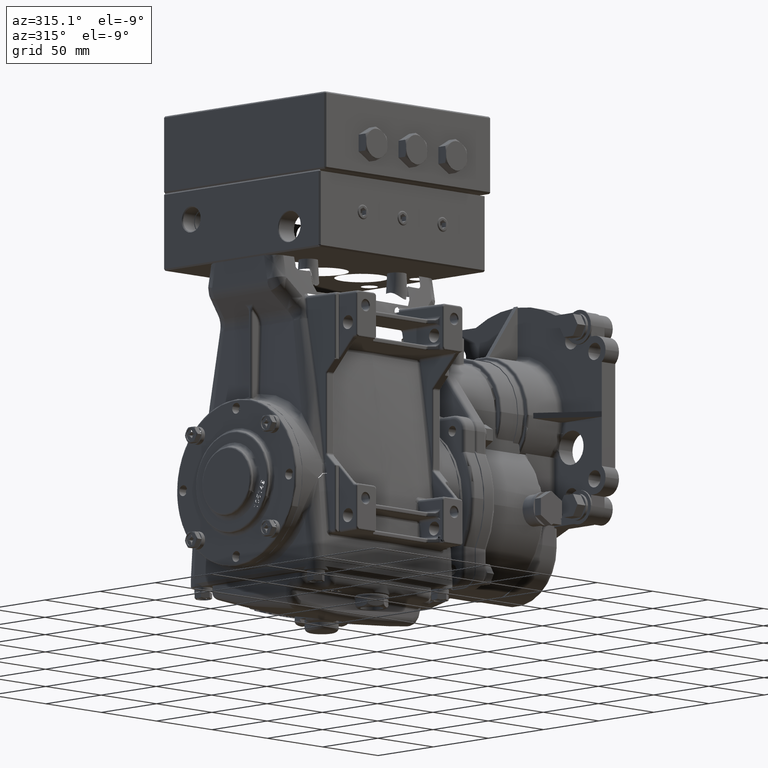
[diagram: clean part render]
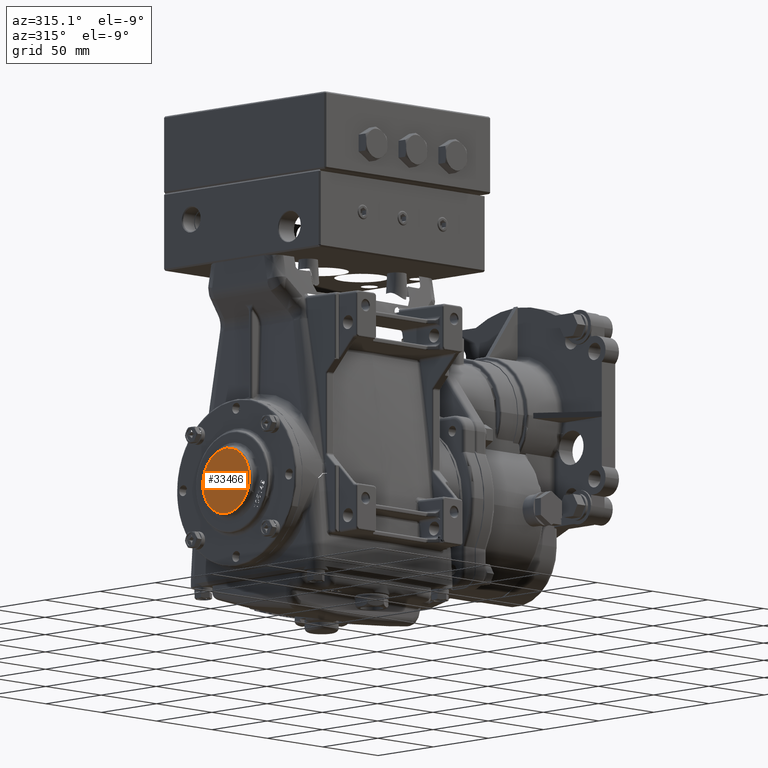
[diagram: same view with one face highlighted and labeled with its STEP entity id]
A machine part, auxiliary view. The second image highlights one B-rep face of the part: STEP entity #33466.
In plain terms, the highlighted planar face has unit normal (1, 0, -0).
Its self-contained STEP definition (entity closure, byte-faithful):
#1611 = DIRECTION ( 'NONE',  ( 1.000000000000000000, 8.405717186409266950E-21, -8.060765882359014613E-24 ) ) ;
#4747 =( BOUNDED_CURVE ( )  B_SPLINE_CURVE ( 3, ( #84977, #58850, #86749, #65277 ),
 .UNSPECIFIED., .F., .F. ) 
 B_SPLINE_CURVE_WITH_KNOTS ( ( 4, 4 ),
 ( 0.000000000000000000, 1.000000000000000000 ),
 .UNSPECIFIED. ) 
 CURVE ( )  GEOMETRIC_REPRESENTATION_ITEM ( )  RATIONAL_B_SPLINE_CURVE ( ( 1.000000000000000000, 0.3333333333333333703, 0.3333333333333333703, 1.000000000000000000 ) ) 
 REPRESENTATION_ITEM ( '' )  );
#8477 = FACE_OUTER_BOUND ( 'NONE', #38544, .T. ) ;
#13399 = AXIS2_PLACEMENT_3D ( 'NONE', #20794, #1611, #57408 ) ;
#13724 = EDGE_CURVE ( 'NONE', #28733, #54631, #34719, .T. ) ;
#15786 = CARTESIAN_POINT ( 'NONE',  ( -3.395669291338581974, 0.7691560998832807083, 0.3185948881536579957 ) ) ;
#20794 = CARTESIAN_POINT ( 'NONE',  ( -3.395669291338581974, -0.3324005873212220741, 0.8024860060516567639 ) ) ;
#27712 = ORIENTED_EDGE ( 'NONE', *, *, #76368, .F. ) ;
#27854 = CARTESIAN_POINT ( 'NONE',  ( -3.395669291338581974, 0.7691560998832807083, 0.3185948881536579957 ) ) ;
#28733 = VERTEX_POINT ( 'NONE', #27854 ) ;
#33466 = ADVANCED_FACE ( 'NONE', ( #8477 ), #64290, .F. ) ;
#34719 =( BOUNDED_CURVE ( )  B_SPLINE_CURVE ( 3, ( #15786, #70710, #35926, #63846 ),
 .UNSPECIFIED., .F., .F. ) 
 B_SPLINE_CURVE_WITH_KNOTS ( ( 4, 4 ),
 ( 0.000000000000000000, 1.000000000000000000 ),
 .UNSPECIFIED. ) 
 CURVE ( )  GEOMETRIC_REPRESENTATION_ITEM ( )  RATIONAL_B_SPLINE_CURVE ( ( 1.000000000000000000, 0.3333333333333333703, 0.3333333333333333703, 1.000000000000000000 ) ) 
 REPRESENTATION_ITEM ( '' )  );
#35926 = CARTESIAN_POINT ( 'NONE',  ( -3.395669291338582418, -1.406345876190596700, 1.219717311612905419 ) ) ;
#38544 = EDGE_LOOP ( 'NONE', ( #50427, #27712 ) ) ;
#50427 = ORIENTED_EDGE ( 'NONE', *, *, #13724, .F. ) ;
#54631 = VERTEX_POINT ( 'NONE', #88557 ) ;
#57408 = DIRECTION ( 'NONE',  ( -7.762785343046501640E-21, 0.9238795325112835188, 0.3826834323650974423 ) ) ;
#58850 = CARTESIAN_POINT ( 'NONE',  ( -3.395669291338582418, -0.1319663235759669095, -1.856907087920219634 ) ) ;
#63846 = CARTESIAN_POINT ( 'NONE',  ( -3.395669291338581974, -0.7691560998832818186, -0.3185948881536569410 ) ) ;
#64290 = PLANE ( 'NONE',  #13399 ) ;
#65277 = CARTESIAN_POINT ( 'NONE',  ( -3.395669291338581974, 0.7691560998832807083, 0.3185948881536579957 ) ) ;
#70710 = CARTESIAN_POINT ( 'NONE',  ( -3.395669291338582418, 0.1319663235759656883, 1.856907087920220523 ) ) ;
#76368 = EDGE_CURVE ( 'NONE', #54631, #28733, #4747, .T. ) ;
#84977 = CARTESIAN_POINT ( 'NONE',  ( -3.395669291338581974, -0.7691560998832818186, -0.3185948881536569410 ) ) ;
#86749 = CARTESIAN_POINT ( 'NONE',  ( -3.395669291338582418, 1.406345876190596034, -1.219717311612904087 ) ) ;
#88557 = CARTESIAN_POINT ( 'NONE',  ( -3.395669291338581974, -0.7691560998832818186, -0.3185948881536569410 ) ) ;